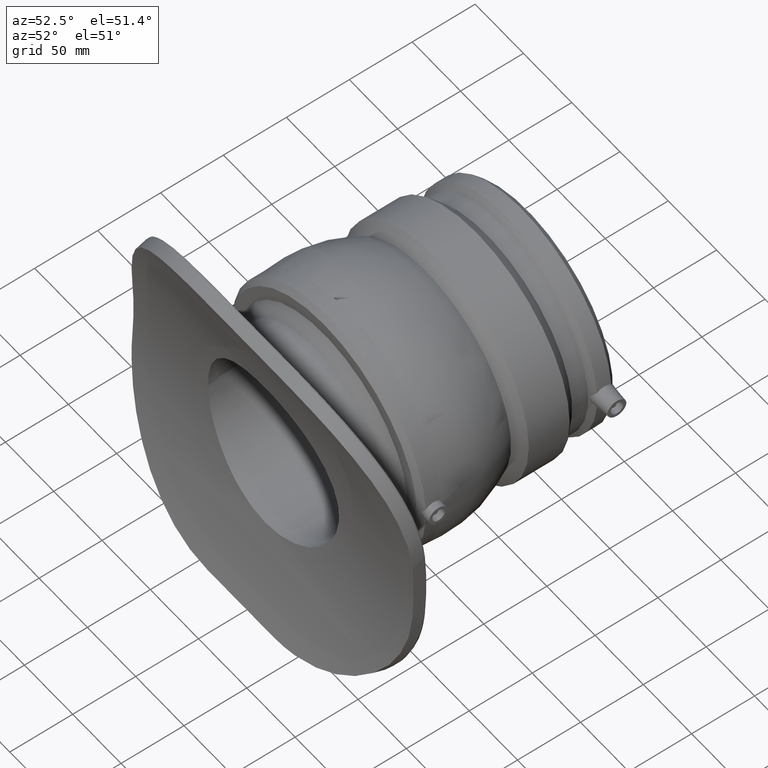
[diagram: clean part render]
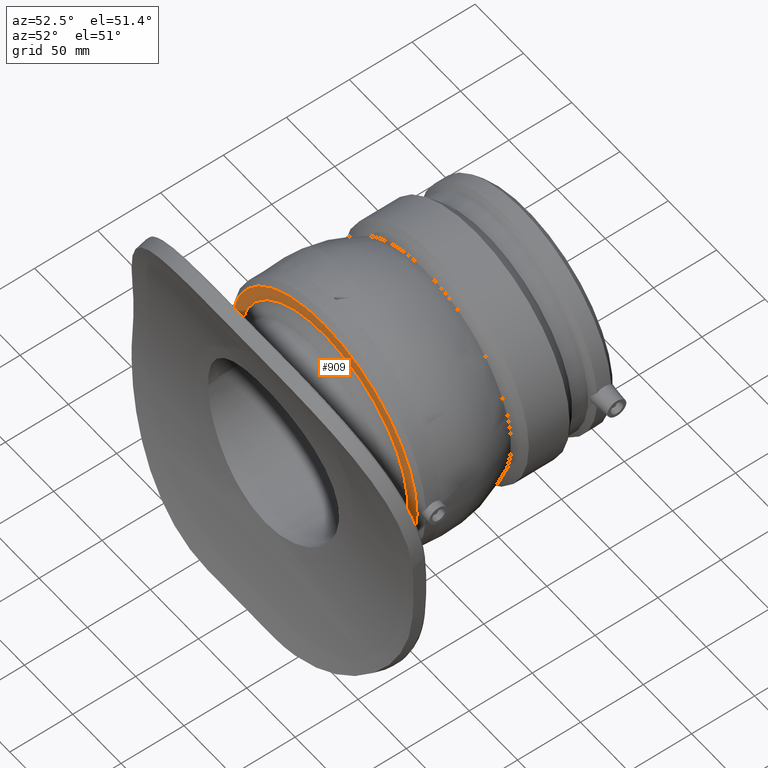
[diagram: same view with one face highlighted and labeled with its STEP entity id]
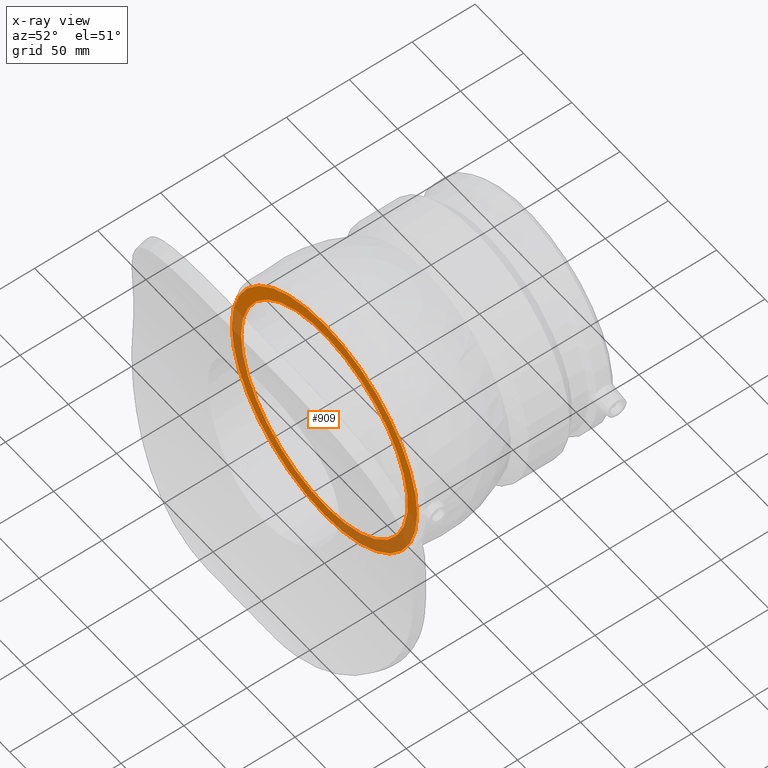
[diagram: x-ray of the same camera — body ghosted, the highlighted face saturated]
A machine part, auxiliary view. The second image highlights one B-rep face of the part: STEP entity #909.
The next image is the same camera in x-ray: the body ghosted, the highlighted face saturated — about 31% of this face is hidden behind the body in this view.
In plain terms, the highlighted planar face has unit normal (0, -1, 0).
Its self-contained STEP definition (entity closure, byte-faithful):
#154=FACE_BOUND('',#306,.T.);
#216=FACE_OUTER_BOUND('',#305,.T.);
#305=EDGE_LOOP('',(#678));
#306=EDGE_LOOP('',(#679));
#383=CIRCLE('',#997,86.2554346113913);
#386=CIRCLE('',#1003,96.);
#448=VERTEX_POINT('',#1642);
#451=VERTEX_POINT('',#1651);
#535=EDGE_CURVE('',#448,#448,#383,.T.);
#538=EDGE_CURVE('',#451,#451,#386,.T.);
#678=ORIENTED_EDGE('',*,*,#538,.F.);
#679=ORIENTED_EDGE('',*,*,#535,.T.);
#877=PLANE('',#1002);
#909=ADVANCED_FACE('',(#216,#154),#877,.T.);
#997=AXIS2_PLACEMENT_3D('',#1643,#1155,#1156);
#1002=AXIS2_PLACEMENT_3D('',#1650,#1165,#1166);
#1003=AXIS2_PLACEMENT_3D('',#1652,#1167,#1168);
#1155=DIRECTION('center_axis',(0.,1.,0.));
#1156=DIRECTION('ref_axis',(1.,0.,0.));
#1165=DIRECTION('center_axis',(0.,-1.,0.));
#1166=DIRECTION('ref_axis',(0.,0.,-1.));
#1167=DIRECTION('center_axis',(0.,1.,0.));
#1168=DIRECTION('ref_axis',(1.,0.,0.));
#1642=CARTESIAN_POINT('',(-86.2554346113913,0.,0.));
#1643=CARTESIAN_POINT('Origin',(0.,0.,0.));
#1650=CARTESIAN_POINT('Origin',(-96.,0.,0.));
#1651=CARTESIAN_POINT('',(-96.,0.,0.));
#1652=CARTESIAN_POINT('Origin',(0.,0.,0.));